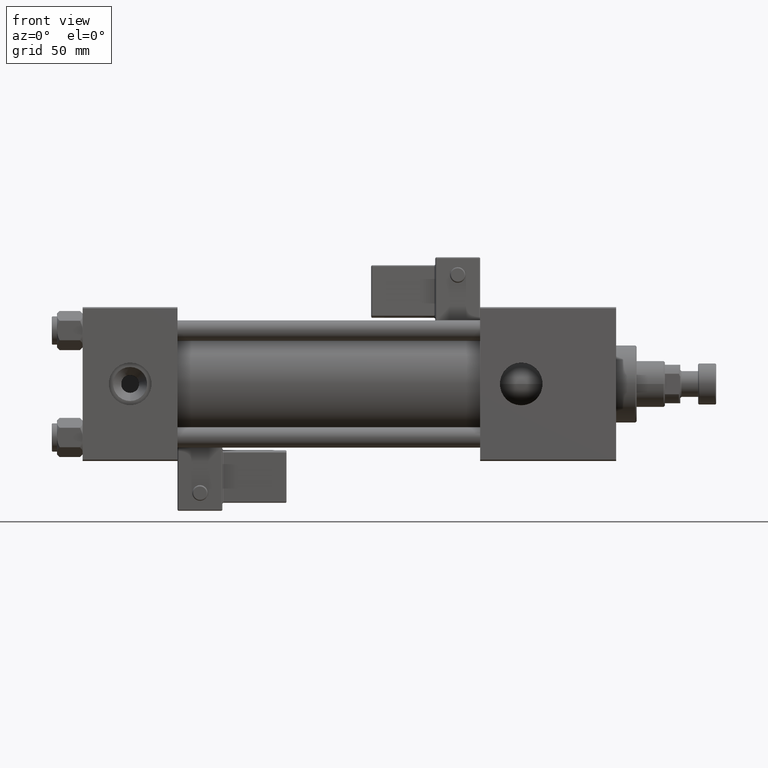
[diagram: clean part render]
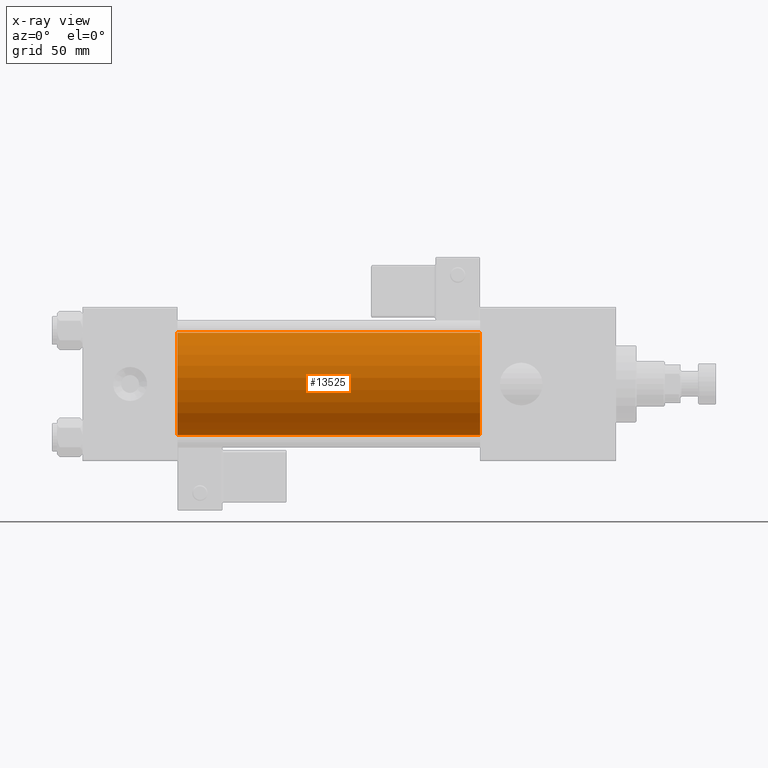
[diagram: x-ray — body ghosted, one internal face saturated and labeled with its STEP entity id]
A machine part, front view, then the same camera in x-ray: the body is ghosted and one INTERNAL B-rep face — a face not visible from any outside direction — is saturated and labeled: STEP entity #13525.
In plain terms, the highlighted cylindrical surface (partial cylindrical patch) has radius 20 mm, axis along (-1, -0, -0).
Its self-contained STEP definition (entity closure, byte-faithful):
#2302 = CARTESIAN_POINT ( 'NONE',  ( 155.0000000000000000, -1.527916156705042519E-16, -20.00000000000000000 ) ) ;
#2330 = DIRECTION ( 'NONE',  ( 1.000000000000000000, 0.000000000000000000, 0.000000000000000000 ) ) ;
#2818 = ORIENTED_EDGE ( 'NONE', *, *, #10537, .T. ) ;
#2908 = CARTESIAN_POINT ( 'NONE',  ( 37.00000000000000000, -1.527916156705042519E-16, -20.00000000000000000 ) ) ;
#3331 = VECTOR ( 'NONE', #43367, 1000.000000000000000 ) ;
#3587 = VERTEX_POINT ( 'NONE', #34475 ) ;
#6150 = VERTEX_POINT ( 'NONE', #2908 ) ;
#7562 = CARTESIAN_POINT ( 'NONE',  ( 155.0000000000000000, -1.527916156705042519E-16, -20.00000000000000000 ) ) ;
#10537 = EDGE_CURVE ( 'NONE', #41100, #6150, #45571, .T. ) ;
#11363 = DIRECTION ( 'NONE',  ( 0.000000000000000000, 0.000000000000000000, -1.000000000000000000 ) ) ;
#11561 = DIRECTION ( 'NONE',  ( -1.000000000000000000, -0.000000000000000000, -0.000000000000000000 ) ) ;
#11593 = AXIS2_PLACEMENT_3D ( 'NONE', #11643, #53273, #11363 ) ;
#11643 = CARTESIAN_POINT ( 'NONE',  ( 155.0000000000000000, -2.602085213965210642E-15, 0.000000000000000000 ) ) ;
#13525 = ADVANCED_FACE ( 'NONE', ( #40988 ), #19883, .F. ) ;
#14527 = VECTOR ( 'NONE', #49750, 1000.000000000000000 ) ;
#15004 = ORIENTED_EDGE ( 'NONE', *, *, #38384, .F. ) ;
#15133 = VERTEX_POINT ( 'NONE', #29216 ) ;
#19552 = DIRECTION ( 'NONE',  ( 0.000000000000000000, 0.000000000000000000, -1.000000000000000000 ) ) ;
#19883 = CYLINDRICAL_SURFACE ( 'NONE', #27840, 20.00000000000000000 ) ;
#22547 = LINE ( 'NONE', #27254, #3331 ) ;
#23538 = CIRCLE ( 'NONE', #30653, 20.00000000000000000 ) ;
#27254 = CARTESIAN_POINT ( 'NONE',  ( 155.0000000000000000, -2.602085213965210642E-15, 20.00000000000000000 ) ) ;
#27448 = EDGE_LOOP ( 'NONE', ( #39152, #2818, #33122, #15004 ) ) ;
#27608 = CARTESIAN_POINT ( 'NONE',  ( 37.00000000000000000, -2.602085213965210642E-15, 0.000000000000000000 ) ) ;
#27840 = AXIS2_PLACEMENT_3D ( 'NONE', #49581, #11561, #36828 ) ;
#29216 = CARTESIAN_POINT ( 'NONE',  ( 155.0000000000000000, -2.602085213965210642E-15, 20.00000000000000000 ) ) ;
#30653 = AXIS2_PLACEMENT_3D ( 'NONE', #27608, #2330, #19552 ) ;
#33008 = EDGE_CURVE ( 'NONE', #3587, #6150, #23538, .T. ) ;
#33122 = ORIENTED_EDGE ( 'NONE', *, *, #33008, .F. ) ;
#34475 = CARTESIAN_POINT ( 'NONE',  ( 37.00000000000000000, -2.602085213965210642E-15, 20.00000000000000000 ) ) ;
#35519 = CIRCLE ( 'NONE', #11593, 20.00000000000000000 ) ;
#36828 = DIRECTION ( 'NONE',  ( 0.000000000000000000, 0.000000000000000000, 1.000000000000000000 ) ) ;
#38384 = EDGE_CURVE ( 'NONE', #15133, #3587, #22547, .T. ) ;
#39152 = ORIENTED_EDGE ( 'NONE', *, *, #54947, .T. ) ;
#40988 = FACE_OUTER_BOUND ( 'NONE', #27448, .T. ) ;
#41100 = VERTEX_POINT ( 'NONE', #2302 ) ;
#43367 = DIRECTION ( 'NONE',  ( -1.000000000000000000, -0.000000000000000000, -0.000000000000000000 ) ) ;
#45571 = LINE ( 'NONE', #7562, #14527 ) ;
#49581 = CARTESIAN_POINT ( 'NONE',  ( 155.0000000000000000, -2.602085213965210642E-15, 0.000000000000000000 ) ) ;
#49750 = DIRECTION ( 'NONE',  ( -1.000000000000000000, -0.000000000000000000, -0.000000000000000000 ) ) ;
#53273 = DIRECTION ( 'NONE',  ( 1.000000000000000000, 0.000000000000000000, 0.000000000000000000 ) ) ;
#54947 = EDGE_CURVE ( 'NONE', #15133, #41100, #35519, .T. ) ;